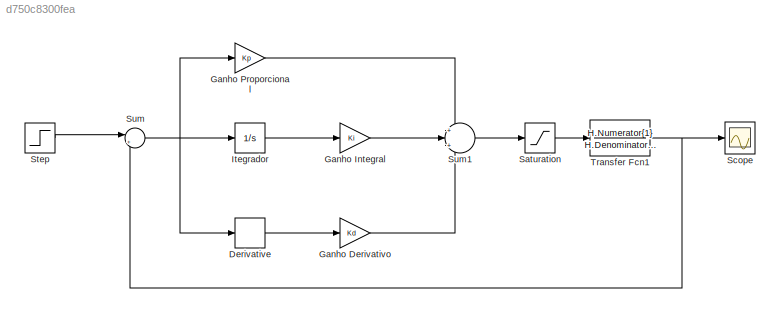
MODEL slx_d750c8300fea
KIND model
CONFIG AbsTol = auto
CONFIG EnableMultiTasking = off
CONFIG FixedStep = auto
CONFIG MaxStep = auto
CONFIG MinStep = auto
CONFIG RelTol = 1e-3
CONFIG SampleTimeConstraint = Unconstrained
CONFIG SolverName = VariableStepAuto
CONFIG StartTime = 0.0
CONFIG StopTime = 25
BLOCK [Derivative] Derivative
BLOCK [Gain] Ganho Derivativo
  Gain = Kd
BLOCK [Gain] Ganho Integral
  Gain = Ki
BLOCK [Gain] Ganho Proporcional
  Gain = Kp
BLOCK [Integrator] Itegrador
BLOCK [Saturate] Saturation
  LowerLimit = -30
  UpperLimit = 30
BLOCK [Scope] Scope
  Floating = off
  NumInputPorts = 1
  ScopeSpecificationString = Simulink.scopes.TimeScopeBlockCfg('CurrentConfiguration', extmgr.ConfigurationSet(extmgr.Configuration('Core','General UI',true),extmgr.Configuration('Core','Source UI',true),extmgr.Configuration('Sources','WiredSimulink',true),extmgr.Configuration('Visuals','Time Domain',true,'SerializedDisplays',{struct('MinYLimReal','-1.73015','MaxYLimReal','15.57131','YLabelReal','','MinYLimMag','0.00000','Max...<+1508ch>
BLOCK [Step] Step
  After = 10
  SampleTime = 0
  Time = 0.010
BLOCK [Sum] Sum
  Inputs = |+-
BLOCK [Sum] Sum1
  Inputs = +|+|+
BLOCK [TransferFcn] Transfer Fcn1
  Denominator = H.Denominator{1}
  Numerator = H.Numerator{1}
LINE Derivative:1 -> Ganho Derivativo:1
LINE Ganho Derivativo:1 -> Sum1:3
LINE Ganho Integral:1 -> Sum1:2
LINE Ganho Proporcional:1 -> Sum1:1
LINE Itegrador:1 -> Ganho Integral:1
LINE Saturation:1 -> Transfer Fcn1:1
LINE Step:1 -> Sum:1
LINE Sum1:1 -> Saturation:1
NET Sum:1 -> Derivative:1, Ganho Proporcional:1, Itegrador:1
NET Transfer Fcn1:1 -> Scope:1, Sum:2
note: NET lines group one-source signal fan-out (src -> all destinations, sorted); 1:1 wires keep LINE
